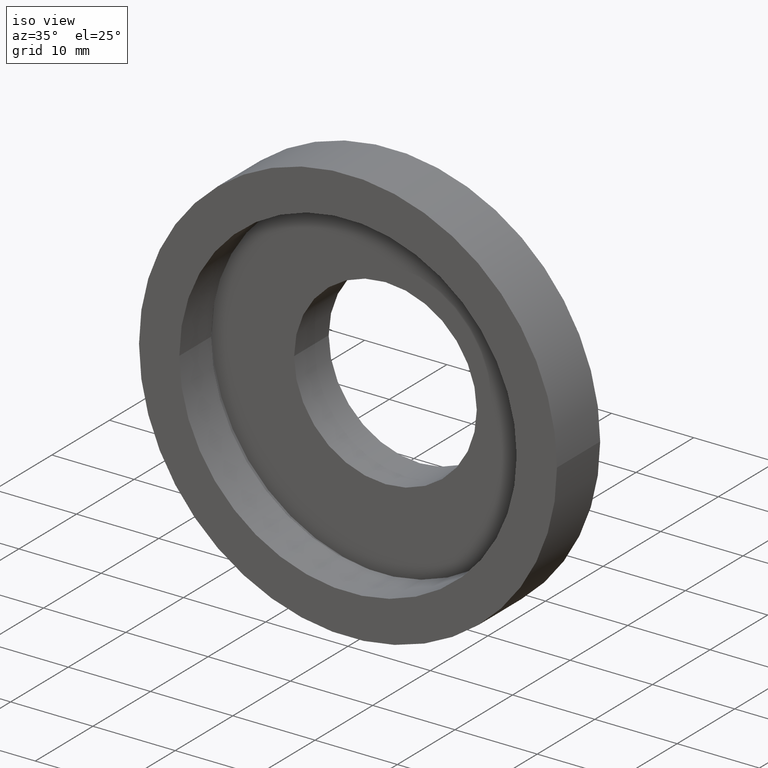
[diagram: clean part render]
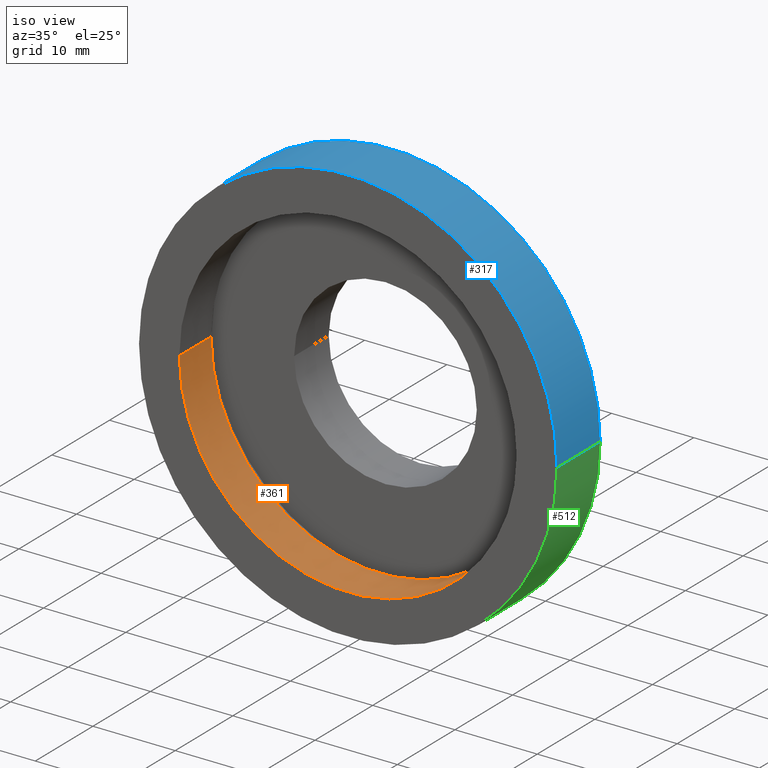
[diagram: same view with three faces highlighted in distinct colors, each labeled with its STEP entity id]
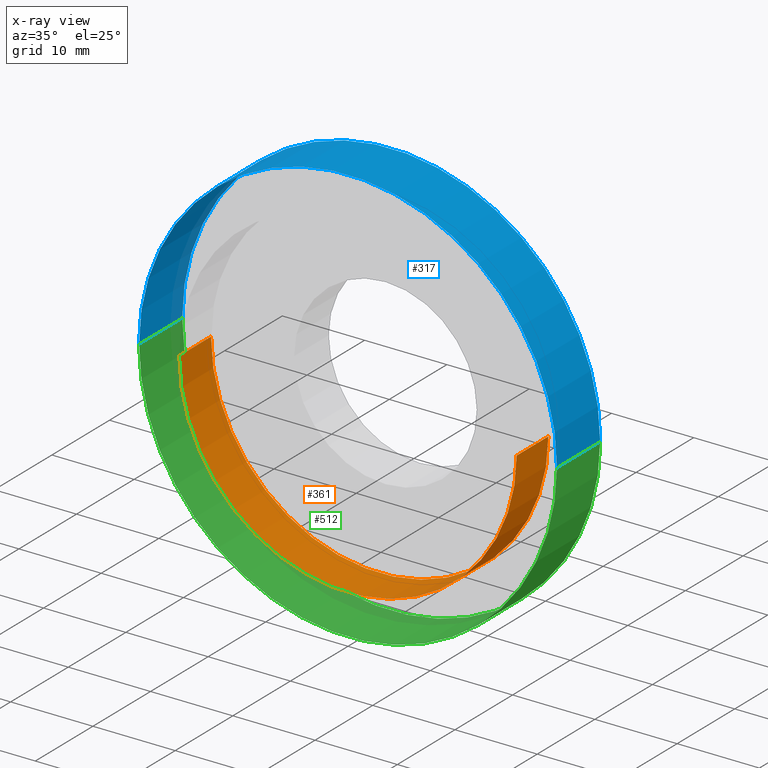
[diagram: x-ray of the same camera — body ghosted, the three highlighted faces saturated]
A machine part, iso view with three faces highlighted in distinct colors.
The next image is the same camera in x-ray (body ghosted, the three faces saturated) — at least one of them is partly hidden behind the body in this view.
Their STEP definitions:

[orange] entity #361 — the highlighted cylindrical surface (partial cylindrical patch) has radius 20.5 mm, axis along (-0, 1, -0).
#5 = VERTEX_POINT ( 'NONE', #129 ) ;
#22 = ORIENTED_EDGE ( 'NONE', *, *, #480, .T. ) ;
#46 = FACE_OUTER_BOUND ( 'NONE', #117, .T. ) ;
#61 = CARTESIAN_POINT ( 'NONE',  ( -20.49999999999999600, -5.979972890205683900E-015, 0.0000000000000000000 ) ) ;
#62 = CARTESIAN_POINT ( 'NONE',  ( 20.50000000000000400, 16.88601823708208000, 2.510525938252074500E-015 ) ) ;
#67 = ORIENTED_EDGE ( 'NONE', *, *, #598, .T. ) ;
#92 = AXIS2_PLACEMENT_3D ( 'NONE', #330, #351, #356 ) ;
#101 = AXIS2_PLACEMENT_3D ( 'NONE', #368, #565, #358 ) ;
#117 = EDGE_LOOP ( 'NONE', ( #208, #22, #67, #608 ) ) ;
#129 = CARTESIAN_POINT ( 'NONE',  ( -20.50000000000000400, 5.499999999999995600, 0.0000000000000000000 ) ) ;
#152 = CYLINDRICAL_SURFACE ( 'NONE', #265, 20.50000000000000400 ) ;
#171 = DIRECTION ( 'NONE',  ( -1.224646799147351000E-016, 1.000000000000000000, -0.0000000000000000000 ) ) ;
#208 = ORIENTED_EDGE ( 'NONE', *, *, #590, .F. ) ;
#255 = VERTEX_POINT ( 'NONE', #61 ) ;
#265 = AXIS2_PLACEMENT_3D ( 'NONE', #479, #415, #556 ) ;
#276 = LINE ( 'NONE', #62, #611 ) ;
#284 = DIRECTION ( 'NONE',  ( -1.224646799147351000E-016, 1.000000000000000000, -0.0000000000000000000 ) ) ;
#296 = CARTESIAN_POINT ( 'NONE',  ( 20.50000000000000400, -9.589210137015444400E-016, 2.510525938252074500E-015 ) ) ;
#330 = CARTESIAN_POINT ( 'NONE',  ( 1.394385078907593000E-015, 5.499999999999998200, 0.0000000000000000000 ) ) ;
#351 = DIRECTION ( 'NONE',  ( -1.224646799147351000E-016, 1.000000000000000000, -0.0000000000000000000 ) ) ;
#353 = CARTESIAN_POINT ( 'NONE',  ( 20.50000000000000400, 5.500000000000000900, 2.510525938252074500E-015 ) ) ;
#356 = DIRECTION ( 'NONE',  ( -1.000000000000000000, -1.269309860470834200E-016, 0.0000000000000000000 ) ) ;
#358 = DIRECTION ( 'NONE',  ( -1.000000000000000000, -1.224646799147351200E-016, 0.0000000000000000000 ) ) ;
#361 = ADVANCED_FACE ( 'NONE', ( #46 ), #152, .F. ) ;
#368 = CARTESIAN_POINT ( 'NONE',  ( 2.067940818438636500E-015, -3.469446951953614200E-015, 0.0000000000000000000 ) ) ;
#405 = VERTEX_POINT ( 'NONE', #353 ) ;
#414 = CIRCLE ( 'NONE', #92, 20.50000000000000400 ) ;
#415 = DIRECTION ( 'NONE',  ( -1.224646799147351000E-016, 1.000000000000000000, -0.0000000000000000000 ) ) ;
#418 = VERTEX_POINT ( 'NONE', #296 ) ;
#428 = CARTESIAN_POINT ( 'NONE',  ( -20.50000000000000400, 16.88601823708207300, 0.0000000000000000000 ) ) ;
#433 = CIRCLE ( 'NONE', #101, 20.50000000000000000 ) ;
#479 = CARTESIAN_POINT ( 'NONE',  ( 0.0000000000000000000, 16.88601823708207700, 0.0000000000000000000 ) ) ;
#480 = EDGE_CURVE ( 'NONE', #418, #405, #276, .T. ) ;
#537 = EDGE_CURVE ( 'NONE', #255, #5, #584, .T. ) ;
#543 = VECTOR ( 'NONE', #284, 1000.000000000000000 ) ;
#556 = DIRECTION ( 'NONE',  ( -1.000000000000000000, -1.692413147294445700E-016, 0.0000000000000000000 ) ) ;
#565 = DIRECTION ( 'NONE',  ( -1.224646799147351000E-016, 1.000000000000000000, -0.0000000000000000000 ) ) ;
#584 = LINE ( 'NONE', #428, #543 ) ;
#590 = EDGE_CURVE ( 'NONE', #418, #255, #433, .T. ) ;
#598 = EDGE_CURVE ( 'NONE', #405, #5, #414, .T. ) ;
#608 = ORIENTED_EDGE ( 'NONE', *, *, #537, .F. ) ;
#611 = VECTOR ( 'NONE', #171, 1000.000000000000000 ) ;

[blue] entity #317 — the highlighted cylindrical surface (partial cylindrical patch) has radius 25.4 mm, axis along (-0, 1, -0).
#8 = CARTESIAN_POINT ( 'NONE',  ( 25.39999999999999900, 16.88601823708208000, 3.110602869834276900E-015 ) ) ;
#14 = CARTESIAN_POINT ( 'NONE',  ( -25.39999999999999900, 7.499999999999992900, 0.0000000000000000000 ) ) ;
#15 = EDGE_CURVE ( 'NONE', #97, #494, #579, .T. ) ;
#20 = EDGE_LOOP ( 'NONE', ( #377, #244, #283, #245 ) ) ;
#45 = CARTESIAN_POINT ( 'NONE',  ( 25.39999999999999900, 7.500000000000000000, 3.110602869834276900E-015 ) ) ;
#52 = DIRECTION ( 'NONE',  ( -1.000000000000000000, -1.224646799147351000E-016, 0.0000000000000000000 ) ) ;
#63 = CARTESIAN_POINT ( 'NONE',  ( 25.39999999999999900, -3.588440821193433400E-016, 3.110602869834276900E-015 ) ) ;
#79 = EDGE_CURVE ( 'NONE', #494, #402, #156, .T. ) ;
#85 = CARTESIAN_POINT ( 'NONE',  ( 2.067940818438636500E-015, -3.469446951953614200E-015, 0.0000000000000000000 ) ) ;
#94 = FACE_OUTER_BOUND ( 'NONE', #20, .T. ) ;
#97 = VERTEX_POINT ( 'NONE', #407 ) ;
#156 = CIRCLE ( 'NONE', #507, 25.39999999999999900 ) ;
#179 = AXIS2_PLACEMENT_3D ( 'NONE', #85, #200, #52 ) ;
#200 = DIRECTION ( 'NONE',  ( -1.224646799147351000E-016, 1.000000000000000000, -0.0000000000000000000 ) ) ;
#209 = VECTOR ( 'NONE', #263, 1000.000000000000000 ) ;
#244 = ORIENTED_EDGE ( 'NONE', *, *, #558, .T. ) ;
#245 = ORIENTED_EDGE ( 'NONE', *, *, #15, .F. ) ;
#263 = DIRECTION ( 'NONE',  ( -1.224646799147351000E-016, 1.000000000000000000, -0.0000000000000000000 ) ) ;
#269 = VERTEX_POINT ( 'NONE', #63 ) ;
#278 = CARTESIAN_POINT ( 'NONE',  ( -25.39999999999999900, 16.88601823708207300, 0.0000000000000000000 ) ) ;
#283 = ORIENTED_EDGE ( 'NONE', *, *, #79, .F. ) ;
#317 = ADVANCED_FACE ( 'NONE', ( #94 ), #347, .T. ) ;
#346 = AXIS2_PLACEMENT_3D ( 'NONE', #592, #530, #618 ) ;
#347 = CYLINDRICAL_SURFACE ( 'NONE', #346, 25.39999999999999900 ) ;
#377 = ORIENTED_EDGE ( 'NONE', *, *, #521, .T. ) ;
#402 = VERTEX_POINT ( 'NONE', #45 ) ;
#407 = CARTESIAN_POINT ( 'NONE',  ( -25.39999999999999100, -6.580049821787884700E-015, 0.0000000000000000000 ) ) ;
#426 = CIRCLE ( 'NONE', #179, 25.39999999999999500 ) ;
#442 = VECTOR ( 'NONE', #457, 1000.000000000000000 ) ;
#457 = DIRECTION ( 'NONE',  ( -1.224646799147351000E-016, 1.000000000000000000, -0.0000000000000000000 ) ) ;
#494 = VERTEX_POINT ( 'NONE', #14 ) ;
#495 = LINE ( 'NONE', #8, #442 ) ;
#507 = AXIS2_PLACEMENT_3D ( 'NONE', #555, #551, #547 ) ;
#521 = EDGE_CURVE ( 'NONE', #97, #269, #426, .T. ) ;
#530 = DIRECTION ( 'NONE',  ( -1.224646799147351000E-016, 1.000000000000000000, -0.0000000000000000000 ) ) ;
#547 = DIRECTION ( 'NONE',  ( -1.000000000000000000, -1.365923996832131600E-016, 0.0000000000000000000 ) ) ;
#551 = DIRECTION ( 'NONE',  ( -1.224646799147351000E-016, 1.000000000000000000, -0.0000000000000000000 ) ) ;
#555 = CARTESIAN_POINT ( 'NONE',  ( 1.149455719078123100E-015, 7.499999999999996400, 0.0000000000000000000 ) ) ;
#558 = EDGE_CURVE ( 'NONE', #269, #402, #495, .T. ) ;
#579 = LINE ( 'NONE', #278, #209 ) ;
#592 = CARTESIAN_POINT ( 'NONE',  ( 0.0000000000000000000, 16.88601823708207700, 0.0000000000000000000 ) ) ;
#618 = DIRECTION ( 'NONE',  ( -1.000000000000000000, -1.365923996832131600E-016, 0.0000000000000000000 ) ) ;

[green] entity #512 — the highlighted cylindrical surface (partial cylindrical patch) has radius 25.4 mm, axis along (-0, 1, -0).
#4 = CARTESIAN_POINT ( 'NONE',  ( 2.067940818438636500E-015, -3.469446951953614200E-015, 0.0000000000000000000 ) ) ;
#8 = CARTESIAN_POINT ( 'NONE',  ( 25.39999999999999900, 16.88601823708208000, 3.110602869834276900E-015 ) ) ;
#14 = CARTESIAN_POINT ( 'NONE',  ( -25.39999999999999900, 7.499999999999992900, 0.0000000000000000000 ) ) ;
#15 = EDGE_CURVE ( 'NONE', #97, #494, #579, .T. ) ;
#45 = CARTESIAN_POINT ( 'NONE',  ( 25.39999999999999900, 7.500000000000000000, 3.110602869834276900E-015 ) ) ;
#63 = CARTESIAN_POINT ( 'NONE',  ( 25.39999999999999900, -3.588440821193433400E-016, 3.110602869834276900E-015 ) ) ;
#81 = ORIENTED_EDGE ( 'NONE', *, *, #532, .T. ) ;
#97 = VERTEX_POINT ( 'NONE', #407 ) ;
#103 = EDGE_CURVE ( 'NONE', #402, #494, #417, .T. ) ;
#138 = EDGE_LOOP ( 'NONE', ( #323, #81, #609, #204 ) ) ;
#151 = AXIS2_PLACEMENT_3D ( 'NONE', #4, #214, #489 ) ;
#165 = AXIS2_PLACEMENT_3D ( 'NONE', #447, #500, #621 ) ;
#204 = ORIENTED_EDGE ( 'NONE', *, *, #103, .F. ) ;
#209 = VECTOR ( 'NONE', #263, 1000.000000000000000 ) ;
#214 = DIRECTION ( 'NONE',  ( -1.224646799147351000E-016, 1.000000000000000000, -0.0000000000000000000 ) ) ;
#263 = DIRECTION ( 'NONE',  ( -1.224646799147351000E-016, 1.000000000000000000, -0.0000000000000000000 ) ) ;
#269 = VERTEX_POINT ( 'NONE', #63 ) ;
#278 = CARTESIAN_POINT ( 'NONE',  ( -25.39999999999999900, 16.88601823708207300, 0.0000000000000000000 ) ) ;
#323 = ORIENTED_EDGE ( 'NONE', *, *, #558, .F. ) ;
#385 = DIRECTION ( 'NONE',  ( -1.000000000000000000, -1.365923996832131600E-016, 0.0000000000000000000 ) ) ;
#386 = DIRECTION ( 'NONE',  ( -1.224646799147351000E-016, 1.000000000000000000, -0.0000000000000000000 ) ) ;
#392 = CARTESIAN_POINT ( 'NONE',  ( 1.149455719078123100E-015, 7.499999999999996400, 0.0000000000000000000 ) ) ;
#402 = VERTEX_POINT ( 'NONE', #45 ) ;
#407 = CARTESIAN_POINT ( 'NONE',  ( -25.39999999999999100, -6.580049821787884700E-015, 0.0000000000000000000 ) ) ;
#417 = CIRCLE ( 'NONE', #490, 25.39999999999999900 ) ;
#442 = VECTOR ( 'NONE', #457, 1000.000000000000000 ) ;
#447 = CARTESIAN_POINT ( 'NONE',  ( 0.0000000000000000000, 16.88601823708207700, 0.0000000000000000000 ) ) ;
#457 = DIRECTION ( 'NONE',  ( -1.224646799147351000E-016, 1.000000000000000000, -0.0000000000000000000 ) ) ;
#489 = DIRECTION ( 'NONE',  ( -1.000000000000000000, -1.224646799147351000E-016, 0.0000000000000000000 ) ) ;
#490 = AXIS2_PLACEMENT_3D ( 'NONE', #392, #386, #385 ) ;
#494 = VERTEX_POINT ( 'NONE', #14 ) ;
#495 = LINE ( 'NONE', #8, #442 ) ;
#500 = DIRECTION ( 'NONE',  ( -1.224646799147351000E-016, 1.000000000000000000, -0.0000000000000000000 ) ) ;
#512 = ADVANCED_FACE ( 'NONE', ( #602 ), #594, .T. ) ;
#532 = EDGE_CURVE ( 'NONE', #269, #97, #583, .T. ) ;
#558 = EDGE_CURVE ( 'NONE', #269, #402, #495, .T. ) ;
#579 = LINE ( 'NONE', #278, #209 ) ;
#583 = CIRCLE ( 'NONE', #151, 25.39999999999999500 ) ;
#594 = CYLINDRICAL_SURFACE ( 'NONE', #165, 25.39999999999999900 ) ;
#602 = FACE_OUTER_BOUND ( 'NONE', #138, .T. ) ;
#609 = ORIENTED_EDGE ( 'NONE', *, *, #15, .T. ) ;
#621 = DIRECTION ( 'NONE',  ( -1.000000000000000000, -1.365923996832131600E-016, 0.0000000000000000000 ) ) ;